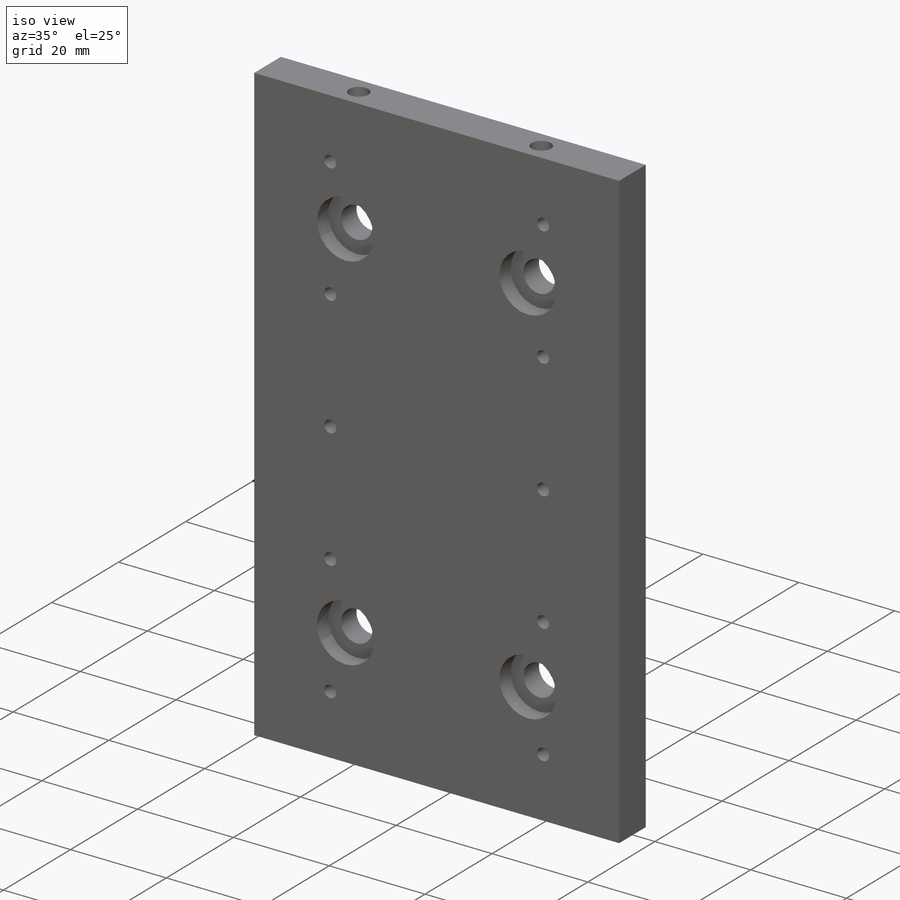
[diagram: iso view]
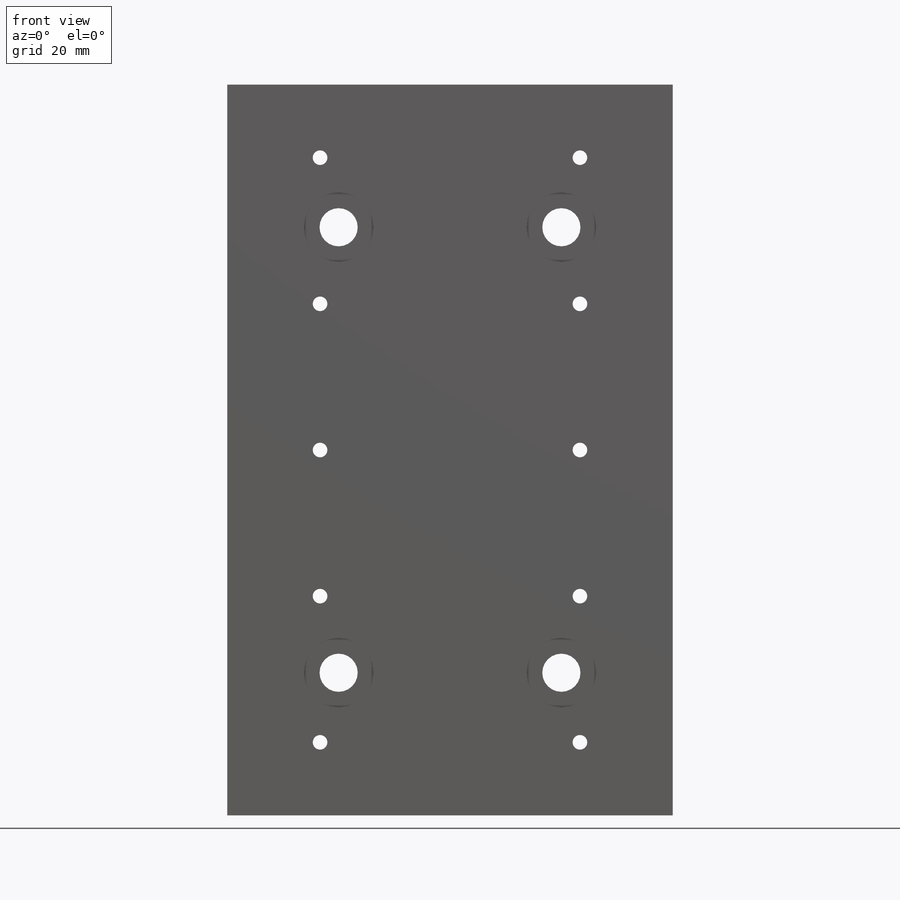
[diagram: front view]
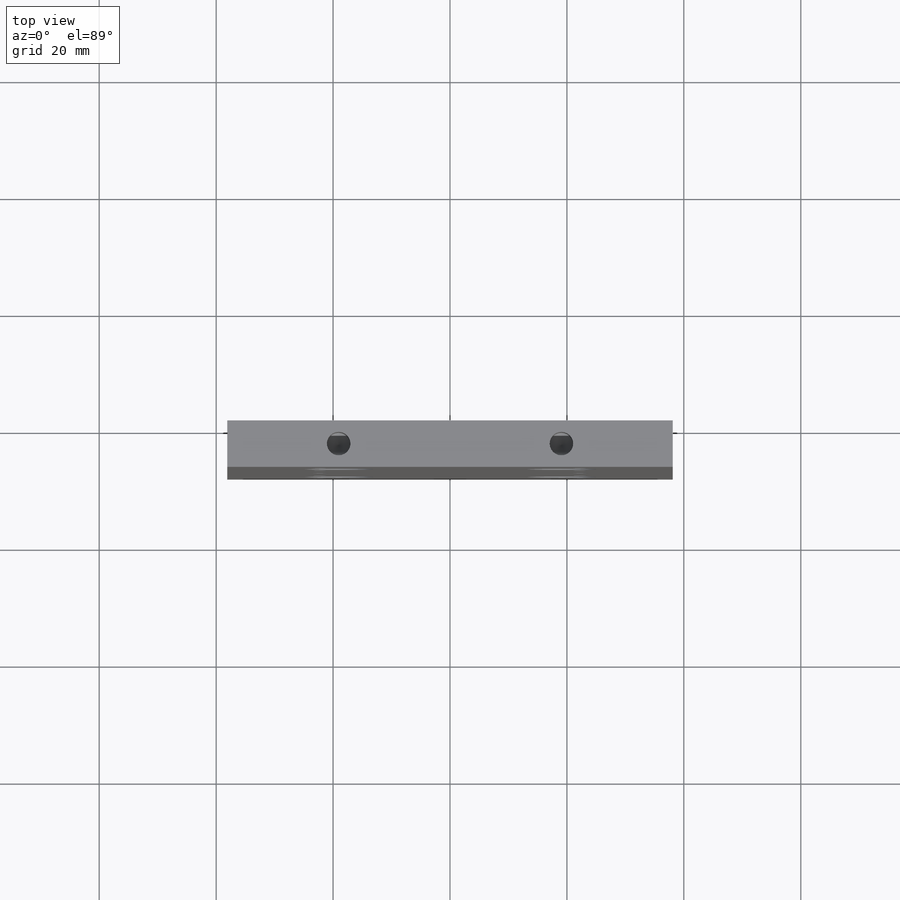
[diagram: top view]
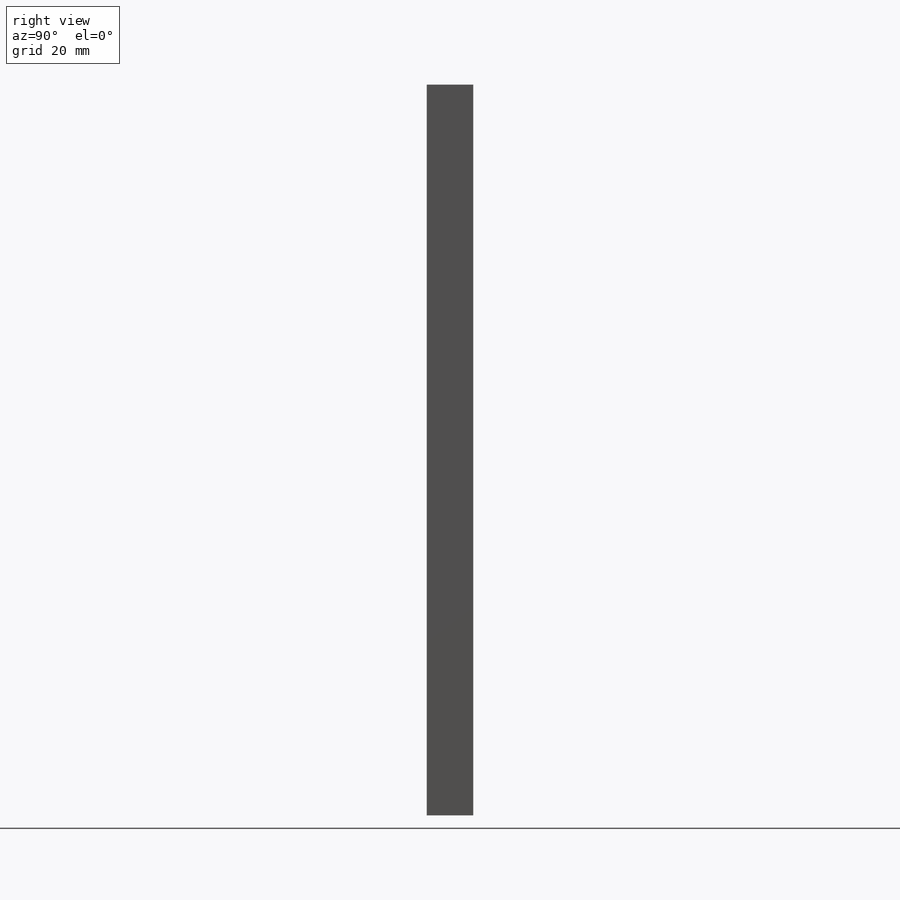
[diagram: right view]
SOLIDWORKS PART (.sldprt)
format: sldprt  version: not decoded by parser v0  size: 353,280 bytes
history: native  units: mm
features: sketch x10, hole x4, material x1, extrude x1, cut_extrude x1 (+13 scaffold rows collapsed)
feature tree (30):
  scaffold x13  (default folders/planes/origin — collapsed)
  material  "6061-T6 (SS)"
  sketch  "Sketch1"  dims[D1=76.2mm D2=125.0mm]
  extrude  "Boss-Extrude1"  Depth=7.9375mm
  hole  "CBORE for 1/4 Button Head Cap Screw1"  Diameter=6.5278mm Depth=7.9375mm
  sketch  "Sketch3"  dims[D1=38.1mm D2=76.2mm D3=19.05mm]
  sketch  "Sketch2"  dims[hole-wizard template sketch: 41 standard entries collapsed; hole parameters kept: c12.Thru Hole Dia.=6.5278mm c12.Thru Hole Depth=7.9375mm c12.C'Bore Dia.=~11.90752mm c12.C'Bore Depth=3.3528mm]
  hole  "M3x0.5 Tapped Hole1"  Diameter=2.5mm Depth=7.9375mm
  sketch  "Sketch5"  dims[c1.D1=44.45mm c1.D2=44.45mm c2.D2=~0.502986deg c3.D2=25.0mm c3.D3=25.0mm c3.D4=25.0mm c3.D5=25.0mm]
  sketch  "Sketch4"  dims[hole-wizard template sketch: 60 standard entries collapsed; hole parameters kept: c18.Thru Tap Drill Depth=7.9375mm]
  hole  "#10-32 Tapped Hole1"  Diameter=4.0386mm Depth=10.16mm
  sketch  "Sketch7"  dims[D1=38.1mm]
  sketch  "Sketch6"  dims[hole-wizard template sketch: 47 standard entries collapsed; hole parameters kept: c15.Tap Drill Depth=10.16mm c15.D3=~14.816244mm c15.Drill Angle=118.0deg]
  hole  "#10-32 Tapped Hole2"  Diameter=4.0386mm Depth=10.16mm
  sketch  "Sketch9"
  sketch  "Sketch8"  dims[hole-wizard template sketch: 47 standard entries collapsed; hole parameters kept: c15.Tap Drill Depth=10.16mm c15.D3=~14.816244mm c15.Drill Angle=118.0deg]
  sketch  "Sketch10"  dims[D3=4.7625mm D8=4.7625mm D9=4.7625mm D1=120.65mm D2=25.4mm D4=30.1625mm D5=30.1625mm D6=111.125mm D7=111.125mm]
  cut_extrude  "Cut-Extrude1"  Depth=4.7625mm
decode coverage: 15 of 16 modeling features carry decoded parameters
note: ~ marks probable driven/reference dimensions
summary: Diameter pulled from absorbed wizard sketch
note: suppression state not decoded; provenance and decode notes live in map.json
